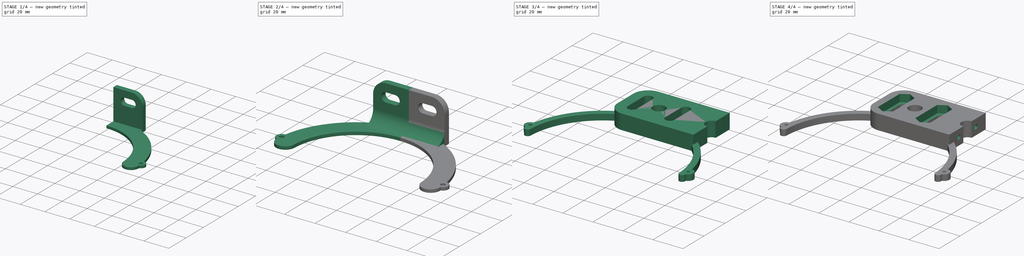
[diagram: build sequence overview — one tinted view per stage of 4, left to right]
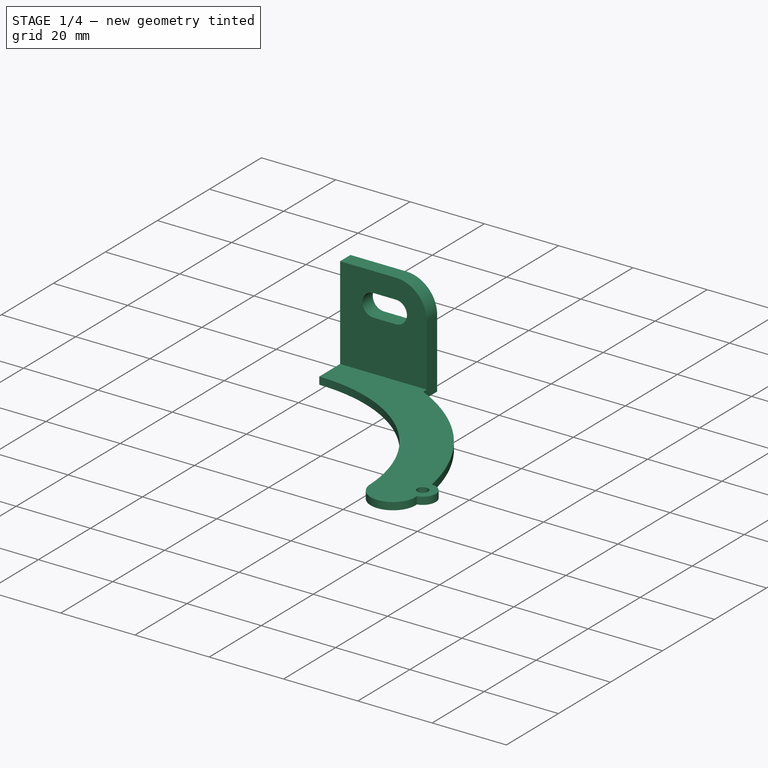
[diagram: stage 1 of 4 — iso view after this stage's code; geometry added in this stage tinted green]
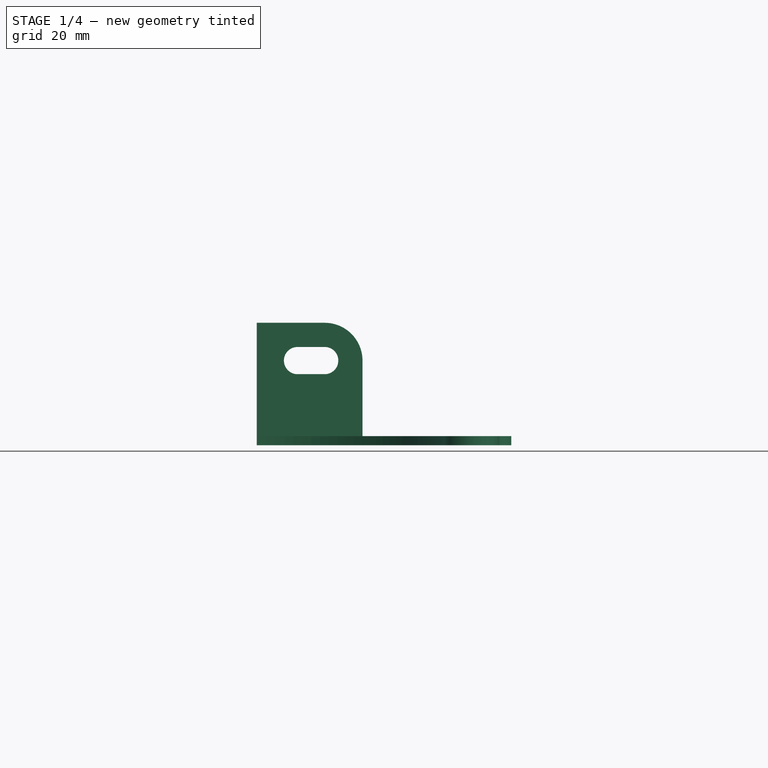
[diagram: stage 1 of 4 — front view after this stage's code; geometry added in this stage tinted green]
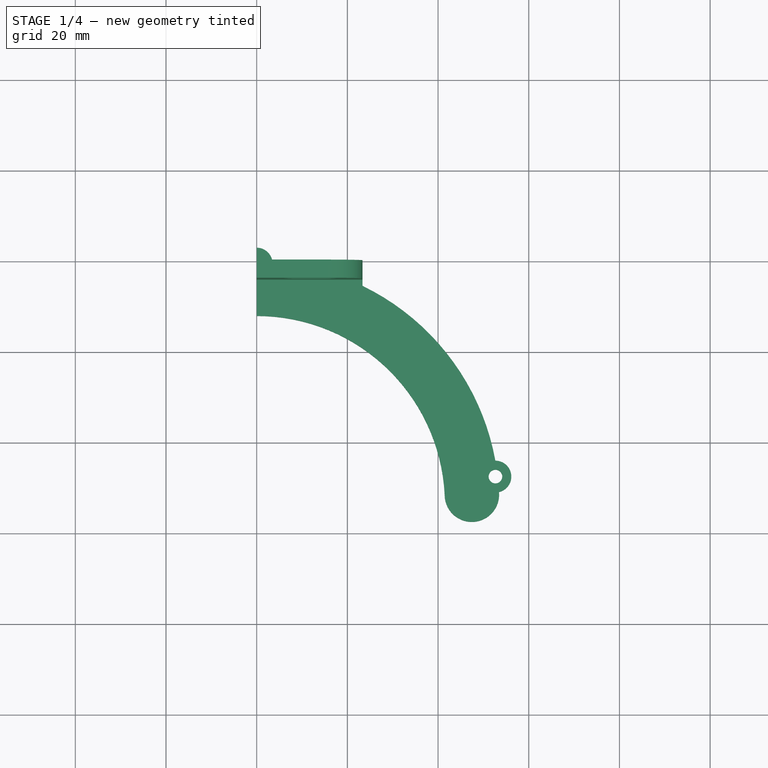
[diagram: stage 1 of 4 — top view after this stage's code; geometry added in this stage tinted green]
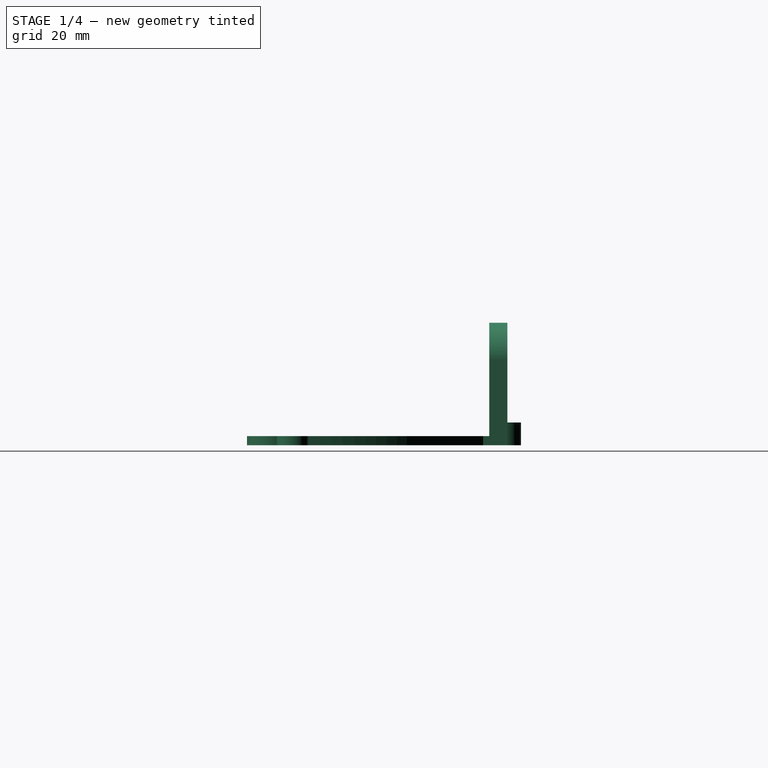
[diagram: stage 1 of 4 — right view after this stage's code; geometry added in this stage tinted green]
FCSTD DOCUMENT  (FreeCAD 0.19R24291 (Git))
Label: ограничитель подложки
License: All rights reserved
LicenseURL: http://en.wikipedia.org/wiki/All_rights_reserved
objects: Sketcher::SketchObject×9, PartDesign::Pad×5, PartDesign::Pocket×4, PartDesign::Body×3, PartDesign::Mirrored×2, PartDesign::SubShapeBinder×1, PartDesign::Fillet×1
note: 35 computed .brp shape members not serialized (recipe doc carries the construction recipe); baked Part::Feature solids carry a one-line shape summary decoded from their .brp

FEATURE [PartDesign::Body] Body
  Group = -> [Sketch,Pad,Sketch001,Pocket,Sketch002,Pocket001,Sketch003,Pocket002]
  Origin = -> Origin
  Placement = pos=(0,0,15) rot=(1,0,0;-1.5708rad)
  Tip = -> Pocket002
FEATURE [Sketcher::SketchObject] Sketch004
  FullyConstrained = false
  MapMode = 5
  Placement = pos=(0,0,0) rot=(1,0,0;1.5708rad)
  Support = -> [XZ_Plane001]
  sketch-geometry (15):
    g0: ArcOfCircle CenterX=9 CenterY=16.6667 CenterZ=0 NormalX=0 NormalY=0 NormalZ=1 AngleXU=0 Radius=3 StartAngle=1.5708 EndAngle=4.71239
    g1: ArcOfCircle CenterX=15 CenterY=16.6667 CenterZ=0 NormalX=0 NormalY=0 NormalZ=1 AngleXU=0 Radius=3 StartAngle=4.71239 EndAngle=7.85398
    g2: LineSegment StartX=9 StartY=13.6667 StartZ=0 EndX=15 EndY=13.6667 EndZ=0
    g3: LineSegment StartX=9 StartY=19.6667 StartZ=0 EndX=15 EndY=19.6667 EndZ=0
    g4: LineSegment StartX=6 StartY=16.6667 StartZ=0 EndX=18 EndY=16.6667 EndZ=0
    g5: LineSegment StartX=0 StartY=0 StartZ=0 EndX=23.3333 EndY=0 EndZ=0
    g6: LineSegment StartX=23.3333 StartY=0 StartZ=0 EndX=23.3333 EndY=16.6667 EndZ=0
    g7: LineSegment StartX=15 StartY=25 StartZ=0 EndX=0 EndY=25 EndZ=0
    g8: LineSegment StartX=0 StartY=25 StartZ=0 EndX=0 EndY=0 EndZ=0
    g9: ArcOfCircle CenterX=15 CenterY=16.6667 CenterZ=0 NormalX=0 NormalY=0 NormalZ=1 AngleXU=0 Radius=8.33333 StartAngle=0 EndAngle=1.5708
    g10: LineSegment StartX=9 StartY=16.6667 StartZ=0 EndX=9 EndY=25 EndZ=0
    g11: LineSegment StartX=9 StartY=16.6667 StartZ=0 EndX=9 EndY=8.33333 EndZ=0
    g12: LineSegment StartX=9 StartY=8.33333 StartZ=0 EndX=9 EndY=0 EndZ=0
    g13: LineSegment StartX=9 StartY=16.6667 StartZ=0 EndX=12 EndY=30.4187 EndZ=0
    g14: LineSegment StartX=12 StartY=30.4187 StartZ=0 EndX=15 EndY=16.6667 EndZ=0
  constraints (39):
    c: Tangent(g0,g3) = 1.5708
    c: Tangent(g0,g2) = -1.5708
    c: Tangent(g2,g1) = -1.5708
    c: Tangent(g3,g1) = 1.5708
    c: Horizontal(g2)
    c: Equal(g0,g1)
    c: Diameter(g1) = 6
    c: PointOnObject(g4,g0)
    c: PointOnObject(g4,g1)
    c: Horizontal(g4)
    c: PointOnObject(g0,g4)
    c: Distance(g4) = 12
    c: Coincident(g5,g6)
    c: Coincident(g7,g8)
    c: Coincident(g8,g5)
    c: Horizontal(g5)
    c: Horizontal(g7)
    c: Vertical(g6)
    c: Vertical(g8)
    c: Coincident(g5,g-1)
    c: Tangent(g7,g9) = -1.5708
    c: Tangent(g6,g9) = -1.5708
    c: Coincident(g9,g1)
    c: Coincident(g10,g0)
    c: PointOnObject(g10,g7)
    c: Vertical(g10)
    c: Coincident(g11,g0)
    c: Vertical(g11)
    c: Coincident(g12,g11)
    c: PointOnObject(g12,g-1)
    c: Vertical(g12)
    c: Equal(g12,g11)
    c: Equal(g11,g10)
    c: Coincident(g13,g0)
    c: Coincident(g14,g13)
    c: Coincident(g14,g1)
    c: Equal(g14,g13)
    c: Distance(g13,g8) = 12
    c: Distance(g8) = 25
FEATURE [PartDesign::Pad] Pad001
  Direction = (1,1,1)
  Length = 4
  Length2 = 100
  Placement = pos=(0,0,0) rot=(1,0,0;1.5708rad)
  Profile = -> Sketch004
  Type = 0
FEATURE [Sketcher::SketchObject] Sketch005
  ExternalGeometry = -> [Pad001]
  FullyConstrained = true
  MapMode = 5
  Support = -> [XY_Plane001]
  sketch-geometry (16):
    g0: ArcOfCircle CenterX=0 CenterY=-53.5 CenterZ=0 NormalX=0 NormalY=0 NormalZ=1 AngleXU=0 Radius=49.5 StartAngle=0.0388447 EndAngle=1.5708
    g1: ArcOfCircle CenterX=0 CenterY=-53.5 CenterZ=0 NormalX=0 NormalY=0 NormalZ=1 AngleXU=0 Radius=53.5 StartAngle=0.0388445 EndAngle=0.0498598
    g2: LineSegment StartX=23.3333 StartY=-5.35641 StartZ=0 EndX=23.3333 EndY=0 EndZ=0
    g3: LineSegment StartX=23.3333 StartY=0 StartZ=0 EndX=0 EndY=0 EndZ=0
    g4: ArcOfCircle CenterX=51.4612 CenterY=-51.5 CenterZ=0 NormalX=0 NormalY=0 NormalZ=1 AngleXU=0 Radius=2 StartAngle=3.18044 EndAngle=6.32202
    g5: LineSegment StartX=0 StartY=-53.5 StartZ=0 EndX=51.4612 EndY=-53.5 EndZ=0
    g6: ArcOfCircle CenterX=0 CenterY=-53.5 CenterZ=0 NormalX=0 NormalY=0 NormalZ=1 AngleXU=0 Radius=41.5 StartAngle=0.0500849 EndAngle=1.5708
    g7: LineSegment StartX=41.448 StartY=-51.4223 StartZ=0 EndX=53.4329 EndY=-50.8216 EndZ=0
    g8: LineSegment StartX=2.5e-15 StartY=-12 StartZ=0 EndX=0 EndY=0 EndZ=0
    g9: LineSegment StartX=41.448 StartY=-51.4223 StartZ=0 EndX=53.4596 EndY=-51.4223 EndZ=0
    g10: Circle CenterX=52.6504 CenterY=-47.4223 CenterZ=0 NormalX=0 NormalY=0 NormalZ=1 AngleXU=0 Radius=1.5
    g11: LineSegment StartX=52.6504 StartY=-47.4223 StartZ=0 EndX=49.1735 EndY=-47.8237 EndZ=0
    g12: LineSegment StartX=52.6504 StartY=-47.4223 StartZ=0 EndX=56.1273 EndY=-47.021 EndZ=0
    g13: ArcOfCircle CenterX=47.4538 CenterY=-51.4223 CenterZ=0 NormalX=0 NormalY=0 NormalZ=1 AngleXU=0 Radius=6.00584 StartAngle=3.14159 EndAngle=6.28319
    g14: ArcOfCircle CenterX=52.6504 CenterY=-47.4223 CenterZ=0 NormalX=0 NormalY=0 NormalZ=1 AngleXU=0 Radius=3.5 StartAngle=4.93805 EndAngle=7.85817
    g15: ArcOfCircle CenterX=0 CenterY=-53.5 CenterZ=0 NormalX=0 NormalY=0 NormalZ=1 AngleXU=0 Radius=53.5 StartAngle=0.179991 EndAngle=1.11949
  constraints (50):
    c: PointOnObject(g0,g-2)
    c: PointOnObject(g0,g-2)
    c: Coincident(g1,g0)
    c: Coincident(g2,g15)
    c: Vertical(g2)
    c: Coincident(g3,g2)
    c: Coincident(g3,g-1)
    c: Coincident(g4,g0)
    c: Coincident(g4,g1)
    c: Tangent(g1,g4)
    c: Tangent(g4,g0)
    c: Diameter(g4) = 4
    c: Diameter(g0) = 99
    c: Coincident(g5,g0)
    c: PointOnObject(g5,g4)
    c: Tangent(g5,g4)
    c: Horizontal(g5)
    c: Coincident(g-3,g2)
    c: Distance(g3) = 23.3333
    c: Distance(g0,g3) = 4
    c: Coincident(g6,g1)
    c: Coincident(g7,g6)
    c: PointOnObject(g7,g1)
    c: Perpendicular(g1,g7)
    c: Distance(g7) = 12
    c: PointOnObject(g6,g-2)
    c: Coincident(g8,g6)
    c: Coincident(g8,g3)
    c: Coincident(g9,g6)
    c: Coincident(g9,g1)
    c: Horizontal(g9)
    c: Diameter(g10) = 3
    c: Coincident(g11,g10)
    c: PointOnObject(g11,g0)
    c: Coincident(g12,g10)
    c: Perpendicular(g1,g12)
    c: Perpendicular(g0,g11)
    c: Equal(g12,g11)
    c: Distance(g10,g9) = 4
    c: PointOnObject(g13,g9)
    c: Coincident(g13,g6)
    c: Coincident(g13,g1)
    c: Coincident(g14,g10)
    c: PointOnObject(g14,g1)
    c: Diameter(g14) = 7
    c: Equal(g1,g15)
    c: Coincident(g1,g14)
    c: Coincident(g1,g15)
    c: PointOnObject(g15,g14)
    c: PointOnObject(g12,g14)
FEATURE [PartDesign::Pad] Pad002
  BaseFeature = -> Pad001
  Direction = (1,1,1)
  Length = 2
  Length2 = 100
  Placement = pos=(0,0,0) rot=(1,0,0;1.5708rad)
  Profile = -> Sketch005
  Reversed = true
  Type = 0
FEATURE [PartDesign::Body] Body002
  Group = -> [Sketch006,Binder,Pad003,Mirrored]
  Origin = -> Origin002
  Placement = pos=(0,0,-6) rot=(0,0,1;0rad)
  Tip = -> Mirrored
FEATURE [Sketcher::SketchObject] Sketch007
  ExternalGeometry = -> [Pad001]
  FullyConstrained = false
  MapMode = 5
  Support = -> [XY_Plane001]
  expr: Constraints[11] = Sketch005.Constraints[11]
  expr: Constraints[12] = Sketch005.Constraints[12]
  expr: Constraints[19] = Sketch005.Constraints[19]
  expr: Constraints[24] = Sketch005.Constraints[24]
  expr: Constraints[31] = Sketch005.Constraints[31]
  expr: Constraints[38] = Sketch005.Constraints[38]
  expr: Constraints[44] = Sketch005.Constraints[44]
  sketch-geometry (22):
    g0: ArcOfCircle CenterX=0 CenterY=-53.5 CenterZ=0 NormalX=0 NormalY=0 NormalZ=1 AngleXU=0 Radius=49.5 StartAngle=0.038845 EndAngle=1.5708
    g1: ArcOfCircle CenterX=0 CenterY=-53.5 CenterZ=0 NormalX=0 NormalY=0 NormalZ=1 AngleXU=0 Radius=53.5 StartAngle=0.0388445 EndAngle=0.0498599
    g2: LineSegment StartX=23.3333 StartY=-5.35641 StartZ=0 EndX=23.3333 EndY=0 EndZ=0
    g3: LineSegment StartX=23.3333 StartY=0 StartZ=0 EndX=0 EndY=0 EndZ=0
    g4: ArcOfCircle CenterX=51.4612 CenterY=-51.5 CenterZ=0 NormalX=0 NormalY=0 NormalZ=1 AngleXU=0 Radius=2 StartAngle=3.18043 EndAngle=6.32202
    g5: LineSegment StartX=0 StartY=-53.5 StartZ=0 EndX=51.4612 EndY=-53.5 EndZ=0
    g6: ArcOfCircle CenterX=0 CenterY=-53.5 CenterZ=0 NormalX=0 NormalY=0 NormalZ=1 AngleXU=0 Radius=41.5 StartAngle=0.050085 EndAngle=1.5708
    g7: LineSegment StartX=41.448 StartY=-51.4223 StartZ=0 EndX=53.4329 EndY=-50.8216 EndZ=0
    g8: LineSegment StartX=0 StartY=-12 StartZ=0 EndX=0 EndY=0 EndZ=0
    g9: LineSegment StartX=41.448 StartY=-51.4223 StartZ=0 EndX=53.4596 EndY=-51.4223 EndZ=0
    g10: Circle CenterX=52.6504 CenterY=-47.4223 CenterZ=0 NormalX=0 NormalY=0 NormalZ=1 AngleXU=0 Radius=1.5
    g11: LineSegment StartX=52.6504 StartY=-47.4223 StartZ=0 EndX=49.1735 EndY=-47.8237 EndZ=0
    g12: LineSegment StartX=52.6504 StartY=-47.4223 StartZ=0 EndX=56.1273 EndY=-47.021 EndZ=0
    g13: ArcOfCircle CenterX=47.4538 CenterY=-51.4223 CenterZ=0 NormalX=0 NormalY=0 NormalZ=1 AngleXU=0 Radius=6.00584 StartAngle=3.14159 EndAngle=6.28319
    g14: ArcOfCircle CenterX=52.6504 CenterY=-47.4223 CenterZ=0 NormalX=0 NormalY=0 NormalZ=1 AngleXU=0 Radius=3.5 StartAngle=4.93805 EndAngle=7.85817
    g15: ArcOfCircle CenterX=0 CenterY=-53.5 CenterZ=0 NormalX=0 NormalY=0 NormalZ=1 AngleXU=0 Radius=53.5 StartAngle=0.179991 EndAngle=1.11949
    g16: Circle CenterX=0 CenterY=-0.5 CenterZ=0 NormalX=0 NormalY=0 NormalZ=1 AngleXU=0 Radius=1.13809
    g17: ArcOfCircle CenterX=0 CenterY=-0.5 CenterZ=0 NormalX=0 NormalY=0 NormalZ=1 AngleXU=0 Radius=3.5 StartAngle=0.143348 EndAngle=1.5708
    g18: LineSegment StartX=0 StartY=-4 StartZ=0 EndX=0 EndY=-0.5 EndZ=0
    g19: LineSegment StartX=0 StartY=-0.5 StartZ=0 EndX=2e-16 EndY=3 EndZ=0
    g20: LineSegment StartX=0 StartY=0 StartZ=0 EndX=3.4641 EndY=0 EndZ=0
    g21: LineSegment StartX=0 StartY=0 StartZ=0 EndX=2e-16 EndY=3 EndZ=0
  constraints (64):
    c: PointOnObject(g0,g-2)
    c: PointOnObject(g0,g-2)
    c: Coincident(g1,g0)
    c: Coincident(g2,g15)
    c: Vertical(g2)
    c: Coincident(g3,g2)
    c: Coincident(g3,g-1)
    c: Coincident(g4,g0)
    c: Coincident(g4,g1)
    c: Tangent(g1,g4)
    c: Tangent(g4,g0)
    c: Diameter(g4) = 4
    c: Diameter(g0) = 99
    c: Coincident(g5,g0)
    c: PointOnObject(g5,g4)
    c: Tangent(g5,g4)
    c: Horizontal(g5)
    c: Coincident(g-3,g2)
    c: Distance(g3) = 23.3333
    c: Distance(g0,g3) = 4
    c: Coincident(g6,g1)
    c: Coincident(g7,g6)
    c: PointOnObject(g7,g1)
    c: Perpendicular(g1,g7)
    c: Distance(g7) = 12
    c: PointOnObject(g6,g-2)
    c: Coincident(g8,g6)
    c: Coincident(g8,g3)
    c: Coincident(g9,g6)
    c: Coincident(g9,g1)
    c: Horizontal(g9)
    c: Diameter(g10) = 3
    c: Coincident(g11,g10)
    c: PointOnObject(g11,g0)
    c: Coincident(g12,g10)
    c: Perpendicular(g1,g12)
    c: Perpendicular(g0,g11)
    c: Equal(g12,g11)
    c: Distance(g10,g9) = 4
    c: PointOnObject(g13,g9)
    c: Coincident(g13,g6)
    c: Coincident(g13,g1)
    c: Coincident(g14,g10)
    c: PointOnObject(g14,g1)
    c: Diameter(g14) = 7
    c: Equal(g1,g15)
    c: Coincident(g1,g14)
    c: Coincident(g1,g15)
    c: PointOnObject(g15,g14)
    c: PointOnObject(g12,g14)
    c: PointOnObject(g16,g-2)
    c: Coincident(g17,g16)
    c: PointOnObject(g17,g-2)
    c: Diameter(g17) = 7
    c: Coincident(g18,g0)
    c: Coincident(g18,g17)
    c: Coincident(g19,g17)
    c: Coincident(g19,g17)
    c: Equal(g18,g19)
    c: Coincident(g20,g-1)
    c: Coincident(g20,g17)
    c: Coincident(g21,g20)
    c: Coincident(g21,g17)
    c: Horizontal(g20)
FEATURE [PartDesign::Pad] Pad004
  BaseFeature = -> Pad002
  Direction = (1,1,1)
  Length = 3
  Length2 = 2
  Placement = pos=(0,0,0) rot=(1,0,0;1.5708rad)
  Profile = -> Sketch007
  Type = 4
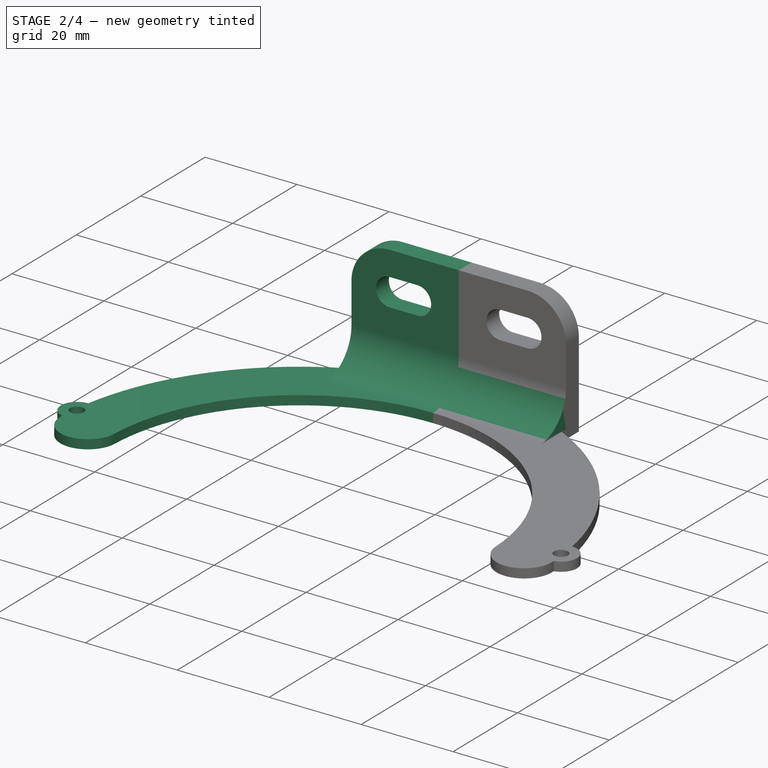
[diagram: stage 2 of 4 — iso view after this stage's code; geometry added in this stage tinted green]
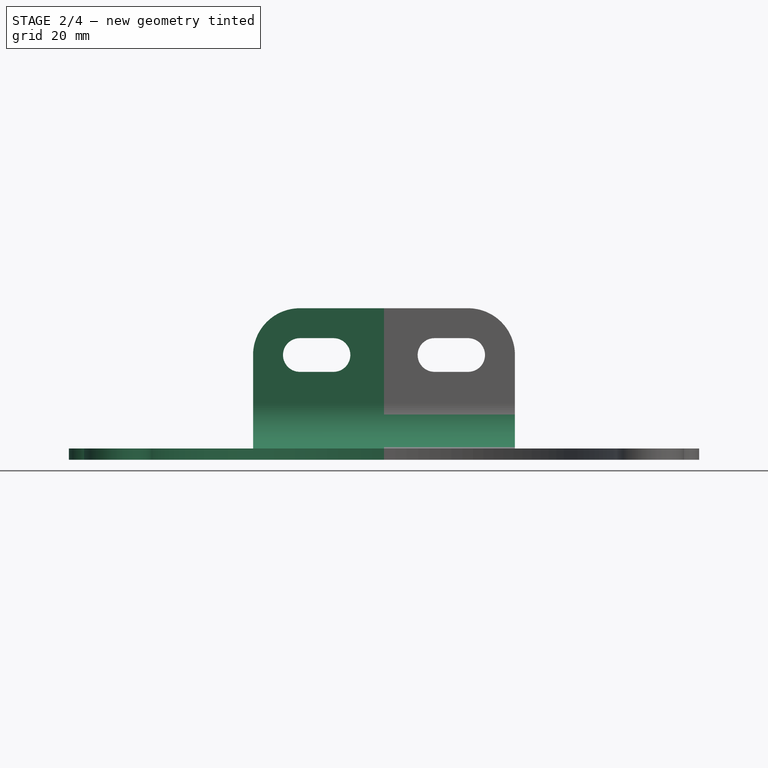
[diagram: stage 2 of 4 — front view after this stage's code; geometry added in this stage tinted green]
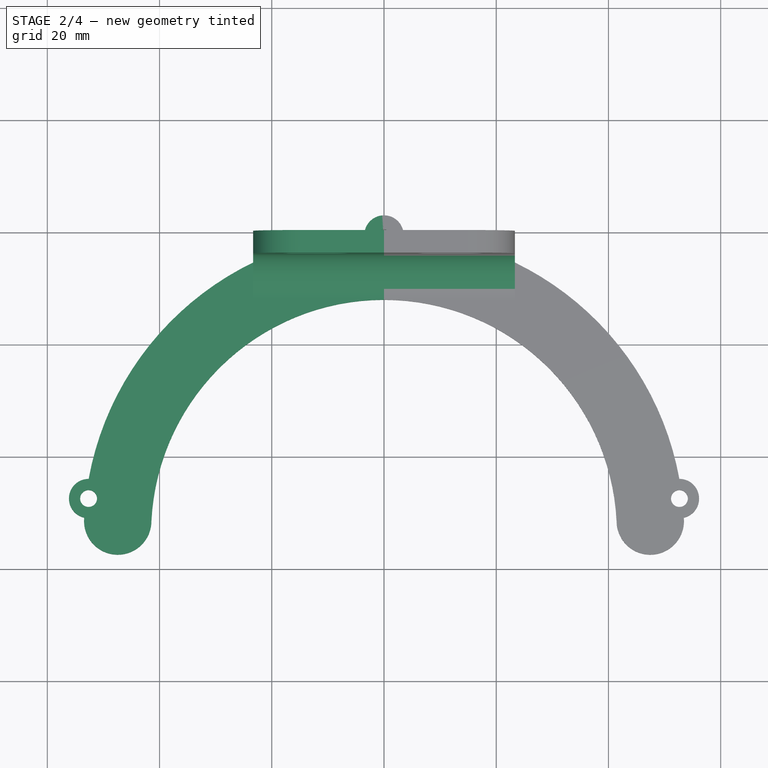
[diagram: stage 2 of 4 — top view after this stage's code; geometry added in this stage tinted green]
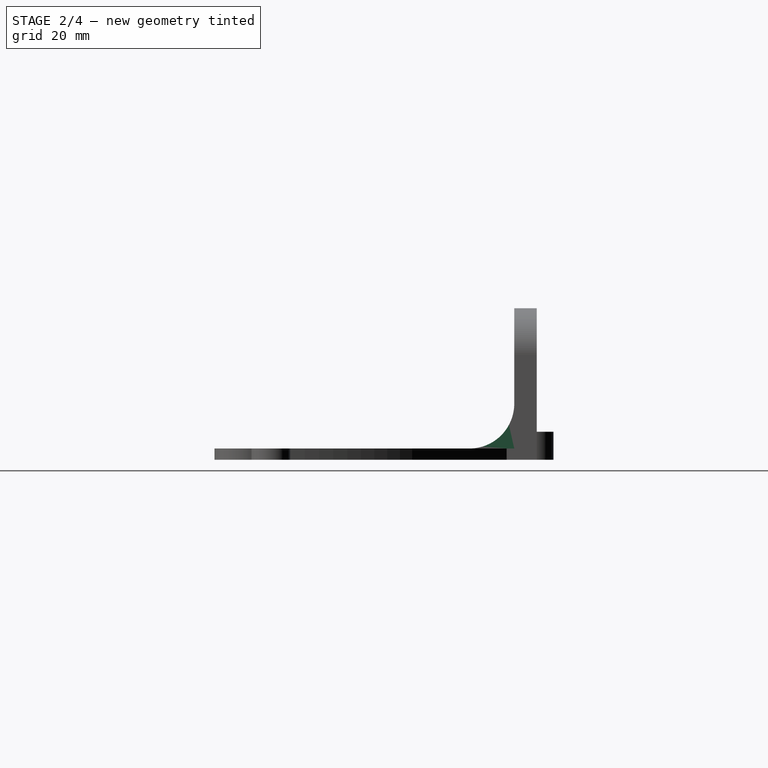
[diagram: stage 2 of 4 — right view after this stage's code; geometry added in this stage tinted green]
FEATURE [Sketcher::SketchObject] Sketch008
  ExternalGeometry = -> [Pad004]
  FullyConstrained = true
  MapMode = 5
  Placement = pos=(0,-1.3e-15,-2) rot=(1,0,0;3.14159rad)
  Support = -> [Pad004]
  sketch-geometry (1):
    g0: Circle CenterX=0 CenterY=0.5 CenterZ=0 NormalX=0 NormalY=0 NormalZ=1 AngleXU=0 Radius=1
  constraints (2):
    c: Coincident(g0,g-3)
    c: Diameter(g0) = 2
FEATURE [PartDesign::Pocket] Pocket003
  BaseFeature = -> Pad004
  Length = 5
  Length2 = 100
  Placement = pos=(0,0,0) rot=(1,0,0;1.5708rad)
  Profile = -> Sketch008
  Type = 0
FEATURE [PartDesign::Mirrored] Mirrored001
  BaseFeature = -> Pocket003
  MirrorPlane = -> Sketch004 [V_Axis]
  Originals = -> [Pad001,Pad002,Pad004,Pocket003]
  Placement = pos=(0,0,0) rot=(1,0,0;1.5708rad)
FEATURE [PartDesign::Fillet] Fillet
  Base = -> Mirrored001 [Edge22]
  BaseFeature = -> Mirrored001
  Placement = pos=(0,0,0) rot=(1,0,0;1.5708rad)
  Radius = 8
  SupportTransform = false
FEATURE [PartDesign::Body] Body001
  Group = -> [Sketch004,Pad001,Sketch005,Pad002,Sketch007,Pad004,Sketch008,Pocket003,Mirrored001,Fillet]
  Origin = -> Origin001
  Tip = -> Fillet
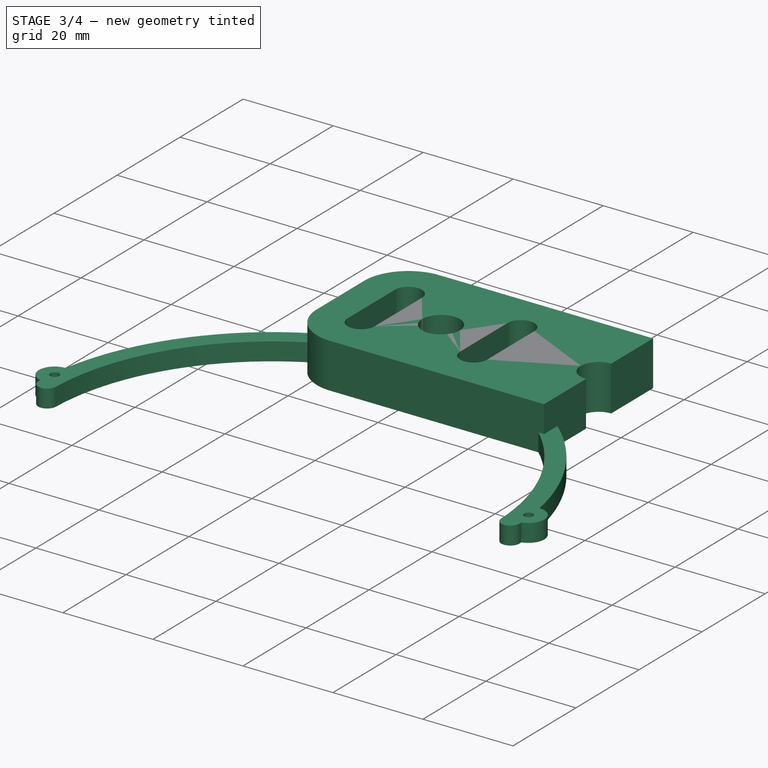
[diagram: stage 3 of 4 — iso view after this stage's code; geometry added in this stage tinted green]
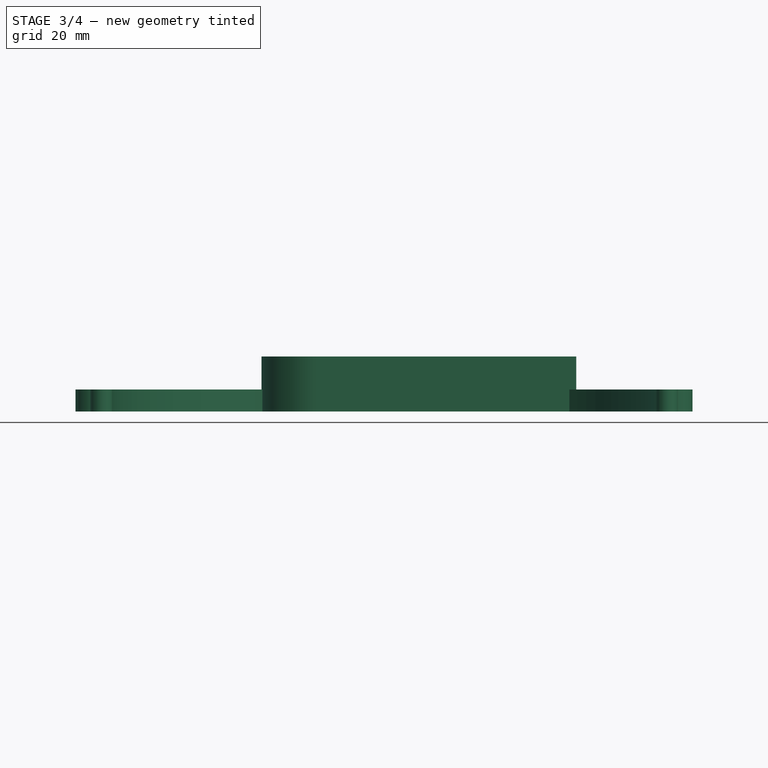
[diagram: stage 3 of 4 — front view after this stage's code; geometry added in this stage tinted green]
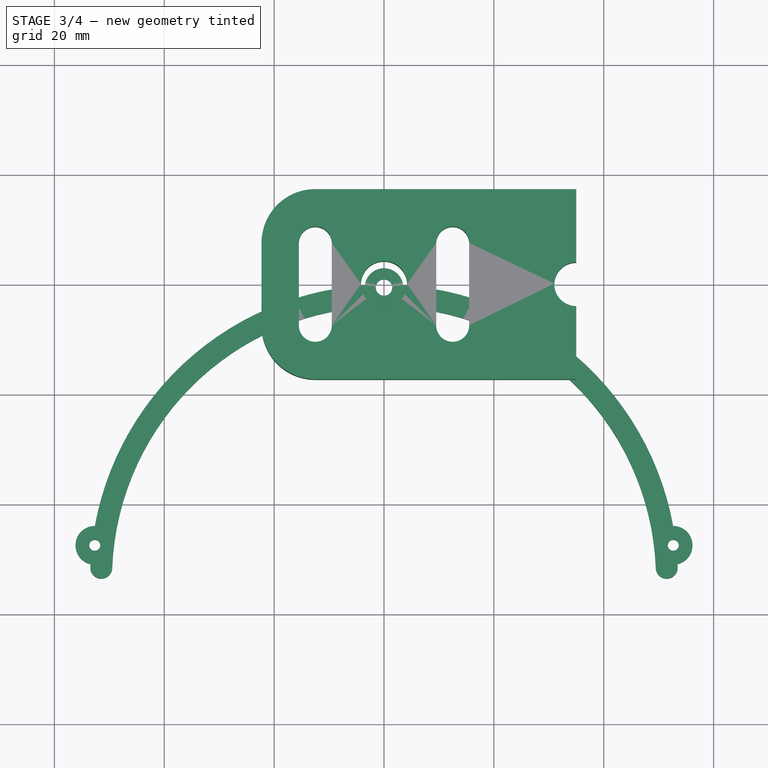
[diagram: stage 3 of 4 — top view after this stage's code; geometry added in this stage tinted green]
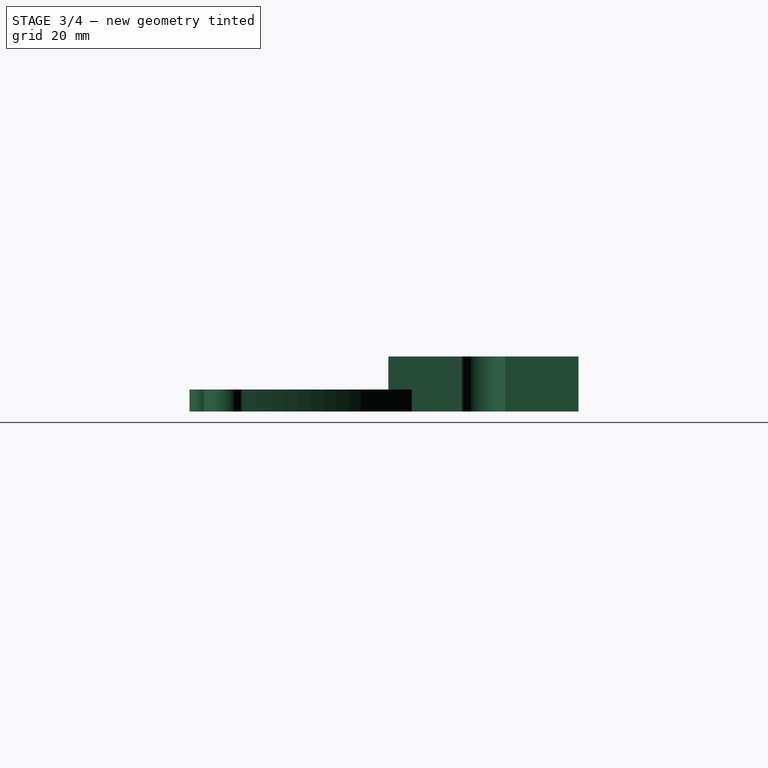
[diagram: stage 3 of 4 — right view after this stage's code; geometry added in this stage tinted green]
FEATURE [Sketcher::SketchObject] Sketch
  FullyConstrained = true
  MapMode = 5
  Support = -> [XY_Plane]
  sketch-geometry (26):
    g0: Circle CenterX=0 CenterY=0 CenterZ=0 NormalX=0 NormalY=0 NormalZ=1 AngleXU=0 Radius=4.2
    g1: ArcOfCircle CenterX=-12.5 CenterY=-7.5 CenterZ=0 NormalX=0 NormalY=0 NormalZ=1 AngleXU=0 Radius=3 StartAngle=3.14159 EndAngle=6.28319
    g2: ArcOfCircle CenterX=-12.5 CenterY=7.5 CenterZ=0 NormalX=0 NormalY=0 NormalZ=1 AngleXU=0 Radius=3 StartAngle=0 EndAngle=3.14159
    g3: LineSegment StartX=-9.5 StartY=-7.5 StartZ=0 EndX=-9.5 EndY=7.5 EndZ=0
    g4: LineSegment StartX=-15.5 StartY=-7.5 StartZ=0 EndX=-15.5 EndY=7.5 EndZ=0
    g5: ArcOfCircle CenterX=12.5 CenterY=-7.5 CenterZ=0 NormalX=0 NormalY=0 NormalZ=1 AngleXU=0 Radius=3 StartAngle=3.14159 EndAngle=6.28319
    g6: ArcOfCircle CenterX=12.5 CenterY=7.5 CenterZ=0 NormalX=0 NormalY=0 NormalZ=1 AngleXU=0 Radius=3 StartAngle=1e-16 EndAngle=3.14159
    g7: LineSegment StartX=15.5 StartY=-7.5 StartZ=0 EndX=15.5 EndY=7.5 EndZ=0
    g8: LineSegment StartX=9.5 StartY=-7.5 StartZ=0 EndX=9.5 EndY=7.5 EndZ=0
    g9: ArcOfCircle CenterX=-12.5 CenterY=-7.5 CenterZ=0 NormalX=0 NormalY=0 NormalZ=1 AngleXU=0 Radius=9.8 StartAngle=3.1416 EndAngle=4.71239
    g10: ArcOfCircle CenterX=-12.5 CenterY=7.5 CenterZ=0 NormalX=0 NormalY=0 NormalZ=1 AngleXU=0 Radius=9.8 StartAngle=1.5708 EndAngle=3.14159
    g11: LineSegment StartX=-12.5 StartY=-17.3 StartZ=0 EndX=35 EndY=-17.3 EndZ=0
    g12: LineSegment StartX=-12.5 StartY=17.3 StartZ=0 EndX=35 EndY=17.3 EndZ=0
    g13: LineSegment StartX=-22.3 StartY=-7.50003 StartZ=0 EndX=-22.3 EndY=7.50002 EndZ=0
    g14: ArcOfCircle CenterX=35 CenterY=0 CenterZ=0 NormalX=0 NormalY=0 NormalZ=1 AngleXU=0 Radius=4 StartAngle=1.5708 EndAngle=4.71239
    g15: LineSegment StartX=35 StartY=4 StartZ=0 EndX=35 EndY=17.3 EndZ=0
    g16: LineSegment StartX=35 StartY=-4 StartZ=0 EndX=35 EndY=-17.3 EndZ=0
    g17: LineSegment StartX=0 StartY=0 StartZ=0 EndX=-12.5 EndY=7.5 EndZ=0
    g18: LineSegment StartX=0 StartY=0 StartZ=0 EndX=12.5 EndY=7.5 EndZ=0
    g19: LineSegment StartX=-12.5 StartY=13.2735 StartZ=0 EndX=-17.5 EndY=10.3868 EndZ=0
    g20: LineSegment StartX=-17.5 StartY=10.3868 StartZ=0 EndX=-17.5 EndY=4.61325 EndZ=0
    g21: LineSegment StartX=-17.5 StartY=4.61325 StartZ=0 EndX=-12.5 EndY=1.7265 EndZ=0
    g22: LineSegment StartX=-12.5 StartY=1.7265 StartZ=0 EndX=-7.5 EndY=4.61325 EndZ=0
    g23: LineSegment StartX=-7.5 StartY=4.61325 StartZ=0 EndX=-7.5 EndY=10.3868 EndZ=0
    g24: LineSegment StartX=-7.5 StartY=10.3868 StartZ=0 EndX=-12.5 EndY=13.2735 EndZ=0
    g25: Circle CenterX=-12.5 CenterY=7.5 CenterZ=0 NormalX=0 NormalY=0 NormalZ=1 AngleXU=0 Radius=5.7735
  constraints (68):
    c: Coincident(g0,g-1)
    c: Diameter(g0) = 8.4
    c: Tangent(g1,g4) = 1.5708
    c: Tangent(g1,g3) = -1.5708
    c: Tangent(g3,g2) = -1.5708
    c: Tangent(g4,g2) = 1.5708
    c: Vertical(g3)
    c: Equal(g1,g2)
    c: Tangent(g5,g8) = 1.5708
    c: Tangent(g5,g7) = -1.5708
    c: Tangent(g7,g6) = -1.5708
    c: Tangent(g8,g6) = 1.5708
    c: Vertical(g7)
    c: Equal(g5,g6)
    c: Horizontal(g6,g2)
    c: Horizontal(g5,g1)
    c: Diameter(g6) = 6
    c: Equal(g6,g2)
    c: Distance(g5,g6) = 15
    c: Coincident(g9,g1)
    c: Coincident(g10,g2)
    c: Equal(g9,g10)
    c: Diameter(g9) = 19.6
    c: Coincident(g11,g9)
    c: Horizontal(g11)
    c: Coincident(g12,g10)
    c: Horizontal(g12)
    c: Coincident(g13,g9)
    c: Coincident(g13,g10)
    c: Vertical(g13)
    c: Tangent(g12,g10)
    c: Tangent(g10,g13)
    c: Tangent(g9,g11)
    c: PointOnObject(g14,g-1)
    c: Coincident(g15,g14)
    c: Vertical(g15)
    c: Coincident(g16,g14)
    c: Vertical(g16)
    c: Coincident(g11,g16)
    c: Coincident(g12,g15)
    c: PointOnObject(g14,g15)
    c: PointOnObject(g14,g16)
    c: Equal(g16,g15)
    c: Diameter(g14) = 8
    c: Distance(g14,g0) = 35
    c: Coincident(g17,g0)
    c: Coincident(g17,g2)
    c: Coincident(g18,g0)
    c: Coincident(g18,g6)
    c: Equal(g18,g17)
    c: DistanceX(g0,g5) = 12.5
    c: Coincident(g19,g20)
    c: Coincident(g20,g21)
    c: Coincident(g21,g22)
    c: Coincident(g22,g23)
    c: Coincident(g23,g24)
    c: Coincident(g24,g19)
    c: Equal(g19, g20-g24) x5
    c: PointOnObject(g19,g25)
    c: PointOnObject(g20,g25)
    c: PointOnObject(g21,g25)
    c: PointOnObject(g22,g25)
    c: PointOnObject(g23,g25)
    c: PointOnObject(g24,g25)
    c: Coincident(g25,g2)
    c: Distance(g22,g20) = 10
    c: Vertical(g23)
    c: Diameter(g25) = 11.547
FEATURE [PartDesign::Pad] Pad
  Direction = (1,1,1)
  Length = 10
  Length2 = 100
  Profile = -> Sketch
  Type = 0
FEATURE [PartDesign::SubShapeBinder] Binder
  BindMode = 0
  ClaimChildren = false
  Context = -> Body002 [Binder.]
  Fuse = false
  MakeFace = true
  PartialLoad = false
  Relative = true
  Support = -> [Body001[Pad002.Face9]]
  _Version = 2
FEATURE [Sketcher::SketchObject] Sketch006
  ExternalGeometry = -> [Binder]
  FullyConstrained = true
  MapMode = 5
  Support = -> [XY_Plane002]
  sketch-geometry (10):
    g0: ArcOfCircle CenterX=0 CenterY=-53.5 CenterZ=0 NormalX=0 NormalY=0 NormalZ=1 AngleXU=0 Radius=53.5 StartAngle=0.0388445 EndAngle=0.0498598
    g1: ArcOfCircle CenterX=0 CenterY=-53.5 CenterZ=0 NormalX=0 NormalY=0 NormalZ=1 AngleXU=0 Radius=49.5 StartAngle=0.0388446 EndAngle=1.5708
    g2: LineSegment StartX=3e-15 StartY=-4 StartZ=0 EndX=-3e-16 EndY=-2 EndZ=0
    g3: ArcOfCircle CenterX=51.4612 CenterY=-51.5 CenterZ=0 NormalX=0 NormalY=0 NormalZ=1 AngleXU=0 Radius=2 StartAngle=3.18044 EndAngle=6.32203
    g4: Circle CenterX=52.6504 CenterY=-47.4223 CenterZ=0 NormalX=0 NormalY=0 NormalZ=1 AngleXU=0 Radius=1
    g5: ArcOfCircle CenterX=0 CenterY=-0.5 CenterZ=0 NormalX=0 NormalY=0 NormalZ=1 AngleXU=0 Radius=1.5 StartAngle=4.71239 EndAngle=7.85398
    g6: ArcOfCircle CenterX=0 CenterY=-0.5 CenterZ=0 NormalX=0 NormalY=0 NormalZ=1 AngleXU=0 Radius=3.5 StartAngle=0.110738 EndAngle=1.5708
    g7: LineSegment StartX=5e-16 StartY=1 StartZ=0 EndX=2e-16 EndY=3 EndZ=0
    g8: ArcOfCircle CenterX=52.6504 CenterY=-47.4223 CenterZ=0 NormalX=0 NormalY=0 NormalZ=1 AngleXU=0 Radius=3.5 StartAngle=4.93805 EndAngle=7.85817
    g9: ArcOfCircle CenterX=0 CenterY=-53.5 CenterZ=0 NormalX=0 NormalY=0 NormalZ=1 AngleXU=0 Radius=53.5 StartAngle=0.179991 EndAngle=1.50573
  constraints (30):
    c: Coincident(g0,g-3)
    c: Coincident(g0,g-3)
    c: Coincident(g1,g0)
    c: PointOnObject(g1,g-2)
    c: Coincident(g2,g1)
    c: Coincident(g3,g1)
    c: Coincident(g3,g0)
    c: Diameter(g4) = 2
    c: PointOnObject(g5,g2)
    c: Diameter(g5) = 3
    c: Coincident(g2,g5)
    c: Distance(g1,g-1) = 4
    c: Coincident(g6,g5)
    c: PointOnObject(g6,g-2)
    c: Tangent(g3,g1)
    c: Diameter(g6) = 7
    c: Coincident(g9,g6)
    c: Coincident(g7,g5)
    c: Coincident(g7,g6)
    c: Equal(g2,g7)
    c: PointOnObject(g2,g-2)
    c: PointOnObject(g5,g-2)
    c: Tangent(g3,g0)
    c: Coincident(g8,g4)
    c: Diameter(g8) = 7
    c: Equal(g0,g9)
    c: Coincident(g0,g8)
    c: Coincident(g9,g8)
    c: Coincident(g0,g9)
    c: Coincident(g8,g-5)
FEATURE [PartDesign::Pad] Pad003
  Direction = (1,1,1)
  Length = 4
  Length2 = 100
  Profile = -> Sketch006
  Type = 0
FEATURE [PartDesign::Mirrored] Mirrored
  BaseFeature = -> Pad003
  MirrorPlane = -> Sketch006 [V_Axis]
  Originals = -> [Pad003]
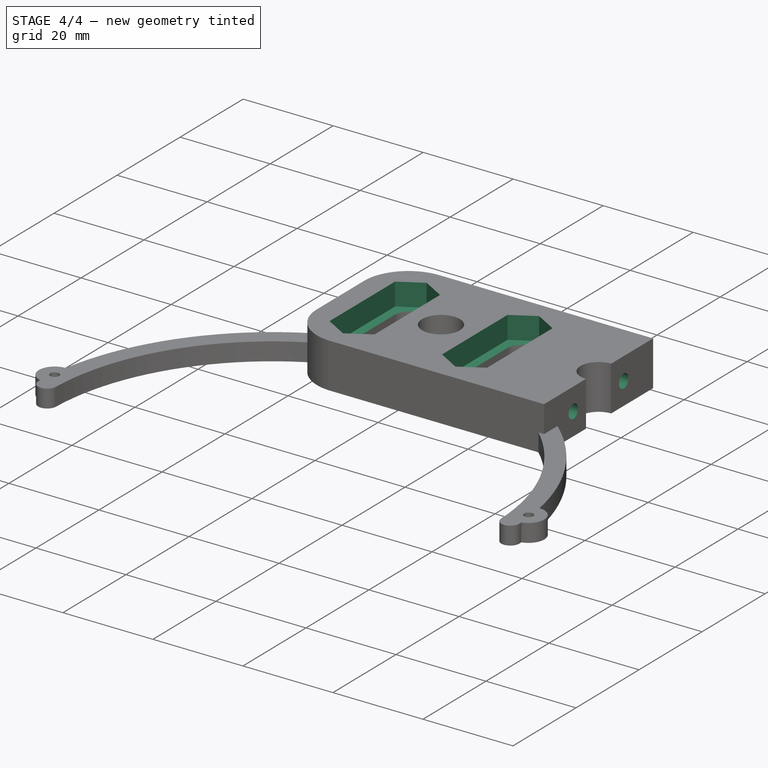
[diagram: stage 4 of 4 — iso view after this stage's code; geometry added in this stage tinted green]
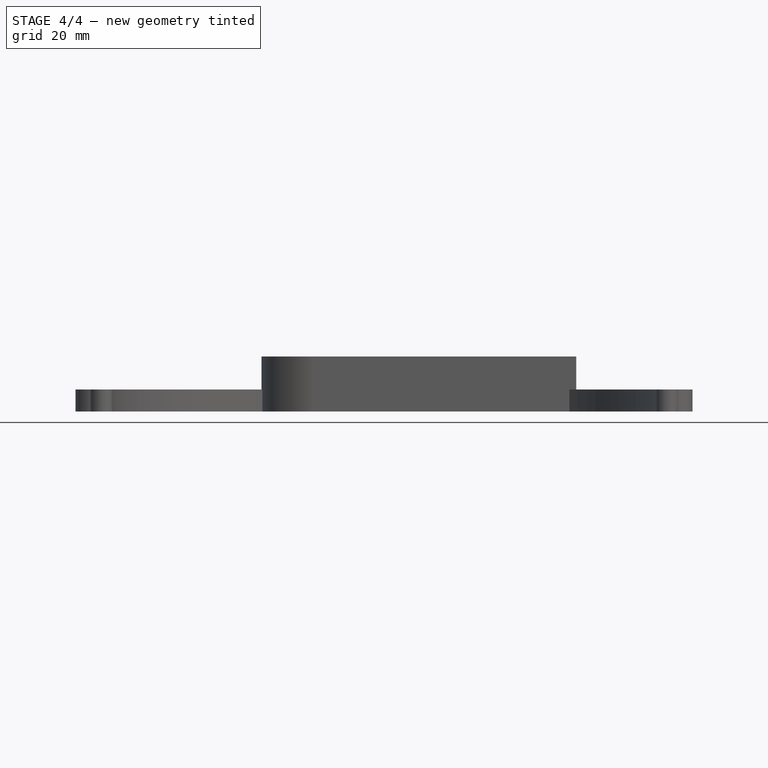
[diagram: stage 4 of 4 — front view after this stage's code; geometry added in this stage tinted green]
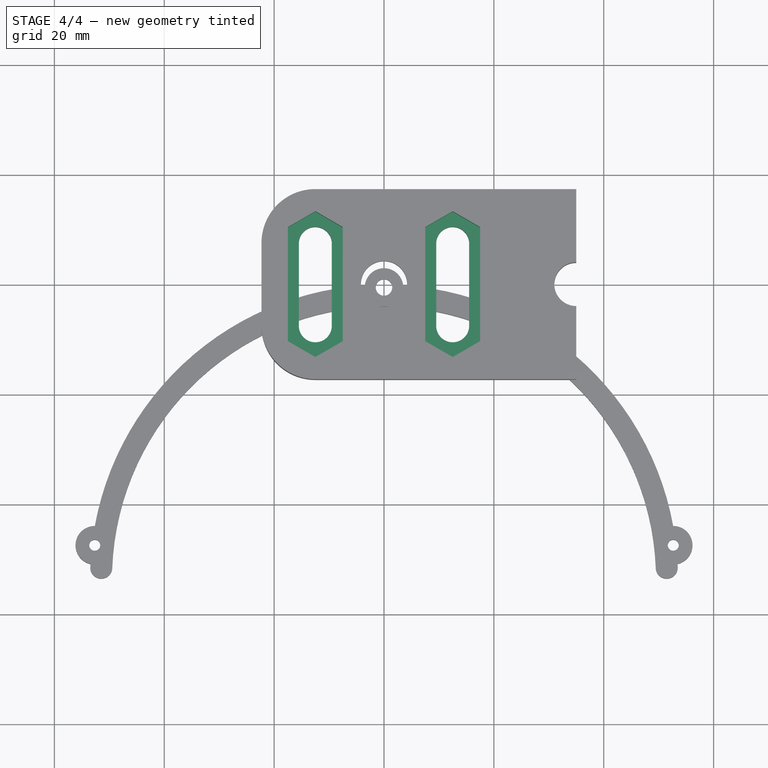
[diagram: stage 4 of 4 — top view after this stage's code; geometry added in this stage tinted green]
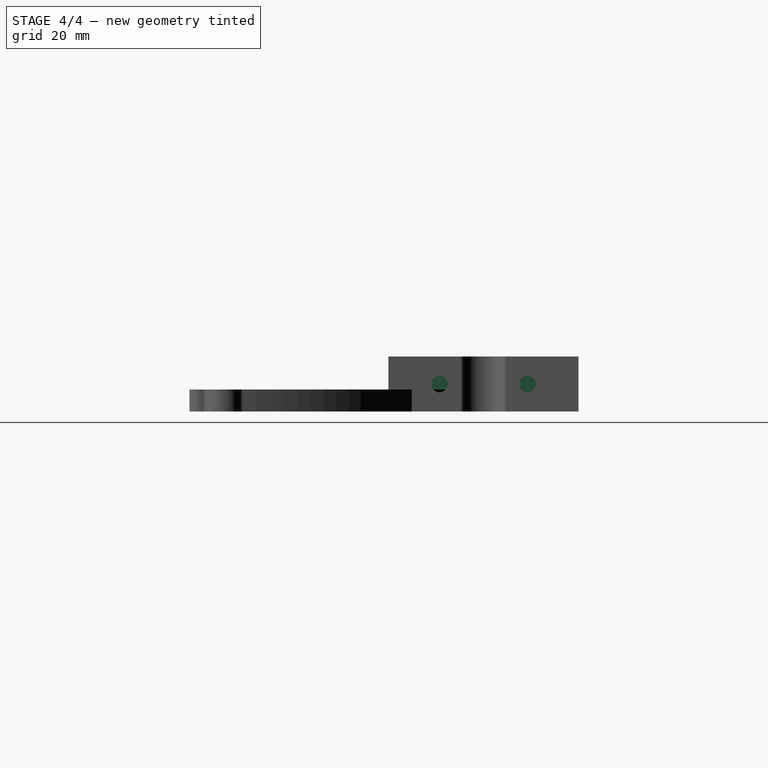
[diagram: stage 4 of 4 — right view after this stage's code; geometry added in this stage tinted green]
FEATURE [Sketcher::SketchObject] Sketch001
  FullyConstrained = true
  MapMode = 5
  Placement = pos=(0,0,10) rot=(0,0,1;0rad)
  Support = -> [Pad]
  expr: Constraints[69] = Sketch.Constraints[69]
  expr: Constraints[22] = Sketch.Constraints[22]
  expr: Constraints[50] = Sketch.Constraints[50]
  expr: Constraints[43] = Sketch.Constraints[43]
  expr: Constraints[18] = Sketch.Constraints[18]
  expr: Constraints[44] = Sketch.Constraints[44]
  expr: Constraints[16] = Sketch.Constraints[16]
  expr: Constraints[1] = Sketch.Constraints[1]
  sketch-geometry (51):
    g0: Circle CenterX=0 CenterY=0 CenterZ=0 NormalX=0 NormalY=0 NormalZ=1 AngleXU=0 Radius=4.2
    g1: ArcOfCircle CenterX=-12.5 CenterY=-7.5 CenterZ=0 NormalX=0 NormalY=0 NormalZ=1 AngleXU=0 Radius=3 StartAngle=3.14159 EndAngle=6.28319
    g2: ArcOfCircle CenterX=-12.5 CenterY=7.5 CenterZ=0 NormalX=0 NormalY=0 NormalZ=1 AngleXU=0 Radius=3 StartAngle=0 EndAngle=3.14159
    g3: LineSegment StartX=-9.5 StartY=-7.5 StartZ=0 EndX=-9.5 EndY=7.5 EndZ=0
    g4: LineSegment StartX=-15.5 StartY=-7.5 StartZ=0 EndX=-15.5 EndY=7.5 EndZ=0
    g5: ArcOfCircle CenterX=12.5 CenterY=-7.5 CenterZ=0 NormalX=0 NormalY=0 NormalZ=1 AngleXU=0 Radius=3 StartAngle=3.14159 EndAngle=6.28319
    g6: ArcOfCircle CenterX=12.5 CenterY=7.5 CenterZ=0 NormalX=0 NormalY=0 NormalZ=1 AngleXU=0 Radius=3 StartAngle=1e-16 EndAngle=3.14159
    g7: LineSegment StartX=15.5 StartY=-7.5 StartZ=0 EndX=15.5 EndY=7.5 EndZ=0
    g8: LineSegment StartX=9.5 StartY=-7.5 StartZ=0 EndX=9.5 EndY=7.5 EndZ=0
    g9: ArcOfCircle CenterX=-12.5 CenterY=-7.5 CenterZ=0 NormalX=0 NormalY=0 NormalZ=1 AngleXU=0 Radius=9.8 StartAngle=3.14159 EndAngle=4.71239
    g10: ArcOfCircle CenterX=-12.5 CenterY=7.5 CenterZ=0 NormalX=0 NormalY=0 NormalZ=1 AngleXU=0 Radius=9.8 StartAngle=1.5708 EndAngle=3.14159
    g11: LineSegment StartX=-12.5 StartY=-17.3 StartZ=0 EndX=35 EndY=-17.3 EndZ=0
    g12: LineSegment StartX=-12.5 StartY=17.3 StartZ=0 EndX=35 EndY=17.3 EndZ=0
    g13: LineSegment StartX=-22.3 StartY=-7.5 StartZ=0 EndX=-22.3 EndY=7.5 EndZ=0
    g14: ArcOfCircle CenterX=35 CenterY=0 CenterZ=0 NormalX=0 NormalY=0 NormalZ=1 AngleXU=0 Radius=4 StartAngle=1.5708 EndAngle=4.71239
    g15: LineSegment StartX=35 StartY=4 StartZ=0 EndX=35 EndY=17.3 EndZ=0
    g16: LineSegment StartX=35 StartY=-4 StartZ=0 EndX=35 EndY=-17.3 EndZ=0
    g17: LineSegment StartX=0 StartY=0 StartZ=0 EndX=-12.5 EndY=7.5 EndZ=0
    g18: LineSegment StartX=0 StartY=0 StartZ=0 EndX=12.5 EndY=7.5 EndZ=0
    g19: LineSegment StartX=-12.5 StartY=13.2735 StartZ=0 EndX=-17.5 EndY=10.3868 EndZ=0
    g20: LineSegment StartX=-17.5 StartY=10.3868 StartZ=0 EndX=-17.5 EndY=4.61325 EndZ=0
    g21: LineSegment StartX=-17.5 StartY=4.61325 StartZ=0 EndX=-12.5 EndY=1.7265 EndZ=0
    g22: LineSegment StartX=-12.5 StartY=1.7265 StartZ=0 EndX=-7.5 EndY=4.61325 EndZ=0
    g23: LineSegment StartX=-7.5 StartY=4.61325 StartZ=0 EndX=-7.5 EndY=10.3868 EndZ=0
    g24: LineSegment StartX=-7.5 StartY=10.3868 StartZ=0 EndX=-12.5 EndY=13.2735 EndZ=0
    g25: Circle CenterX=-12.5 CenterY=7.5 CenterZ=0 NormalX=0 NormalY=0 NormalZ=1 AngleXU=0 Radius=5.7735
    g26: LineSegment StartX=-12.5 StartY=-1.7265 StartZ=0 EndX=-17.5 EndY=-4.61325 EndZ=0
    g27: LineSegment StartX=-17.5 StartY=-4.61325 StartZ=0 EndX=-17.5 EndY=-10.3868 EndZ=0
    g28: LineSegment StartX=-17.5 StartY=-10.3868 StartZ=0 EndX=-12.5 EndY=-13.2735 EndZ=0
    g29: LineSegment StartX=-12.5 StartY=-13.2735 StartZ=0 EndX=-7.5 EndY=-10.3868 EndZ=0
    g30: LineSegment StartX=-7.5 StartY=-10.3868 StartZ=0 EndX=-7.5 EndY=-4.61325 EndZ=0
    g31: LineSegment StartX=-7.5 StartY=-4.61325 StartZ=0 EndX=-12.5 EndY=-1.7265 EndZ=0
    g32: Circle CenterX=-12.5 CenterY=-7.5 CenterZ=0 NormalX=0 NormalY=0 NormalZ=1 AngleXU=0 Radius=5.7735
    g33: LineSegment StartX=12.5 StartY=-1.7265 StartZ=0 EndX=7.5 EndY=-4.61325 EndZ=0
    g34: LineSegment StartX=7.5 StartY=-4.61325 StartZ=0 EndX=7.5 EndY=-10.3868 EndZ=0
    g35: LineSegment StartX=7.5 StartY=-10.3868 StartZ=0 EndX=12.5 EndY=-13.2735 EndZ=0
    g36: LineSegment StartX=12.5 StartY=-13.2735 StartZ=0 EndX=17.5 EndY=-10.3868 EndZ=0
    g37: LineSegment StartX=17.5 StartY=-10.3868 StartZ=0 EndX=17.5 EndY=-4.61325 EndZ=0
    g38: LineSegment StartX=17.5 StartY=-4.61325 StartZ=0 EndX=12.5 EndY=-1.7265 EndZ=0
    g39: Circle CenterX=12.5 CenterY=-7.5 CenterZ=0 NormalX=0 NormalY=0 NormalZ=1 AngleXU=0 Radius=5.7735
    g40: LineSegment StartX=12.5 StartY=13.2735 StartZ=0 EndX=7.5 EndY=10.3868 EndZ=0
    g41: LineSegment StartX=7.5 StartY=10.3868 StartZ=0 EndX=7.5 EndY=4.61325 EndZ=0
    g42: LineSegment StartX=7.5 StartY=4.61325 StartZ=0 EndX=12.5 EndY=1.7265 EndZ=0
    g43: LineSegment StartX=12.5 StartY=1.7265 StartZ=0 EndX=17.5 EndY=4.61325 EndZ=0
    g44: LineSegment StartX=17.5 StartY=4.61325 StartZ=0 EndX=17.5 EndY=10.3868 EndZ=0
    g45: LineSegment StartX=17.5 StartY=10.3868 StartZ=0 EndX=12.5 EndY=13.2735 EndZ=0
    g46: Circle CenterX=12.5 CenterY=7.5 CenterZ=0 NormalX=0 NormalY=0 NormalZ=1 AngleXU=0 Radius=5.7735
    g47: LineSegment StartX=-17.5 StartY=-4.61325 StartZ=0 EndX=-17.5 EndY=4.61325 EndZ=0
    g48: LineSegment StartX=-7.5 StartY=-4.61325 StartZ=0 EndX=-7.5 EndY=4.61325 EndZ=0
    g49: LineSegment StartX=7.5 StartY=-4.61325 StartZ=0 EndX=7.5 EndY=4.61325 EndZ=0
    g50: LineSegment StartX=17.5 StartY=-4.61325 StartZ=0 EndX=17.5 EndY=4.61325 EndZ=0
  constraints (124):
    c: Coincident(g0,g-1)
    c: Diameter(g0) = 8.4
    c: Tangent(g1,g4) = 1.5708
    c: Tangent(g1,g3) = -1.5708
    c: Tangent(g3,g2) = -1.5708
    c: Tangent(g4,g2) = 1.5708
    c: Vertical(g3)
    c: Equal(g1,g2)
    c: Tangent(g5,g8) = 1.5708
    c: Tangent(g5,g7) = -1.5708
    c: Tangent(g7,g6) = -1.5708
    c: Tangent(g8,g6) = 1.5708
    c: Vertical(g7)
    c: Equal(g5,g6)
    c: Horizontal(g6,g2)
    c: Horizontal(g5,g1)
    c: Diameter(g6) = 6
    c: Equal(g6,g2)
    c: Distance(g5,g6) = 15
    c: Coincident(g9,g1)
    c: Coincident(g10,g2)
    c: Equal(g9,g10)
    c: Diameter(g9) = 19.6
    c: Coincident(g11,g9)
    c: Horizontal(g11)
    c: Coincident(g12,g10)
    c: Horizontal(g12)
    c: Coincident(g13,g9)
    c: Coincident(g13,g10)
    c: Vertical(g13)
    c: Tangent(g12,g10)
    c: Tangent(g10,g13)
    c: Tangent(g9,g11)
    c: PointOnObject(g14,g-1)
    c: Coincident(g15,g14)
    c: Vertical(g15)
    c: Coincident(g16,g14)
    c: Vertical(g16)
    c: Coincident(g11,g16)
    c: Coincident(g12,g15)
    c: PointOnObject(g14,g15)
    c: PointOnObject(g14,g16)
    c: Equal(g16,g15)
    c: Diameter(g14) = 8
    c: Distance(g14,g0) = 35
    c: Coincident(g17,g0)
    c: Coincident(g17,g2)
    c: Coincident(g18,g0)
    c: Coincident(g18,g6)
    c: Equal(g18,g17)
    c: DistanceX(g0,g5) = 12.5
    c: Coincident(g19,g20)
    c: Coincident(g20,g21)
    c: Coincident(g21,g22)
    c: Coincident(g22,g23)
    c: Coincident(g23,g24)
    c: Coincident(g24,g19)
    c: Equal(g19, g20-g24) x5
    c: PointOnObject(g19,g25)
    c: PointOnObject(g20,g25)
    c: PointOnObject(g21,g25)
    c: PointOnObject(g22,g25)
    c: PointOnObject(g23,g25)
    c: PointOnObject(g24,g25)
    c: Coincident(g25,g2)
    c: Distance(g22,g20) = 10
    c: Vertical(g23)
    c: Diameter(g25) = 11.547
    c: Coincident(g26,g27)
    c: Coincident(g27,g28)
    c: Coincident(g28,g29)
    c: Coincident(g29,g30)
    c: Coincident(g30,g31)
    c: Coincident(g31,g26)
    c: Equal(g26, g27-g31) x5
    c: PointOnObject(g26,g32)
    c: PointOnObject(g27,g32)
    c: PointOnObject(g28,g32)
    c: PointOnObject(g29,g32)
    c: PointOnObject(g30,g32)
    c: PointOnObject(g31,g32)
    c: Coincident(g32,g1)
    c: Coincident(g33,g34)
    c: Coincident(g34,g35)
    c: Coincident(g35,g36)
    c: Coincident(g36,g37)
    c: Coincident(g37,g38)
    c: Coincident(g38,g33)
    c: Equal(g33, g34-g38) x5
    c: PointOnObject(g33,g39)
    c: PointOnObject(g34,g39)
    c: PointOnObject(g35,g39)
    c: PointOnObject(g36,g39)
    c: PointOnObject(g37,g39)
    c: PointOnObject(g38,g39)
    c: Coincident(g39,g5)
    c: Coincident(g40,g41)
    c: Coincident(g41,g42)
    c: Coincident(g42,g43)
    c: Coincident(g43,g44)
    c: Coincident(g44,g45)
    c: Coincident(g45,g40)
    c: Equal(g40, g41-g45) x5
    c: PointOnObject(g40,g46)
    c: PointOnObject(g41,g46)
    c: PointOnObject(g42,g46)
    c: PointOnObject(g43,g46)
    c: PointOnObject(g44,g46)
    c: PointOnObject(g45,g46)
    c: Coincident(g46,g6)
    c: Vertical(g44)
    c: Vertical(g37)
    c: Vertical(g30)
    c: Equal(g46,g25)
    c: Equal(g25,g32)
    c: Equal(g32,g39)
    c: Coincident(g47,g27)
    c: Coincident(g47,g20)
    c: Coincident(g48,g30)
    c: Coincident(g48,g23)
    c: Coincident(g49,g34)
    c: Coincident(g49,g41)
    c: Coincident(g50,g37)
    c: Coincident(g50,g44)
FEATURE [PartDesign::Pocket] Pocket
  BaseFeature = -> Pad
  Length = 5
  Length2 = 100
  Profile = -> Sketch001
  Type = 0
FEATURE [Sketcher::SketchObject] Sketch002
  FullyConstrained = true
  MapMode = 5
  Support = -> [XY_Plane]
  sketch-geometry (7):
    g0: LineSegment StartX=-6.5 StartY=3.75278 StartZ=0 EndX=-6.5 EndY=-3.75278 EndZ=0
    g1: LineSegment StartX=-6.5 StartY=-3.75278 StartZ=0 EndX=0 EndY=-7.50555 EndZ=0
    g2: LineSegment StartX=0 StartY=-7.50555 StartZ=0 EndX=6.5 EndY=-3.75278 EndZ=0
    g3: LineSegment StartX=6.5 StartY=-3.75278 StartZ=0 EndX=6.5 EndY=3.75278 EndZ=0
    g4: LineSegment StartX=6.5 StartY=3.75278 StartZ=0 EndX=0 EndY=7.50555 EndZ=0
    g5: LineSegment StartX=0 StartY=7.50555 StartZ=0 EndX=-6.5 EndY=3.75278 EndZ=0
    g6: Circle CenterX=0 CenterY=0 CenterZ=0 NormalX=0 NormalY=0 NormalZ=1 AngleXU=0 Radius=7.50555
  constraints (16):
    c: Coincident(g0,g1)
    c: Coincident(g1,g2)
    c: Coincident(g2,g3)
    c: Coincident(g3,g4)
    c: Coincident(g4,g5)
    c: Coincident(g5,g0)
    c: Equal(g0, g1-g5) x5
    c: PointOnObject(g0,g6)
    c: PointOnObject(g1,g6)
    c: PointOnObject(g2,g6)
    c: PointOnObject(g3,g6)
    c: PointOnObject(g4,g6)
    c: PointOnObject(g5,g6)
    c: Coincident(g6,g-1)
    c: Vertical(g0)
    c: DistanceX(g0,g3) = 13
FEATURE [PartDesign::Pocket] Pocket001
  BaseFeature = -> Pocket
  Length = 5
  Length2 = 100
  Profile = -> Sketch002
  Reversed = true
  Type = 0
FEATURE [Sketcher::SketchObject] Sketch003
  ExternalGeometry = -> [Pocket001]
  FullyConstrained = true
  MapMode = 5
  Placement = pos=(35,0,0) rot=(0.57735,0.57735,0.57735;2.0944rad)
  Support = -> [Pocket001]
  sketch-geometry (5):
    g0: Circle CenterX=-8 CenterY=5 CenterZ=0 NormalX=0 NormalY=0 NormalZ=1 AngleXU=0 Radius=1.5
    g1: Circle CenterX=8 CenterY=5 CenterZ=0 NormalX=0 NormalY=0 NormalZ=1 AngleXU=0 Radius=1.5
    g2: LineSegment StartX=-4 StartY=0 StartZ=0 EndX=-8 EndY=5 EndZ=0
    g3: LineSegment StartX=-8 StartY=5 StartZ=0 EndX=-4 EndY=10 EndZ=0
    g4: LineSegment StartX=4 StartY=10 StartZ=0 EndX=8 EndY=5 EndZ=0
  constraints (12):
    c: Distance(g1,g0) = 16
    c: Horizontal(g0,g1)
    c: Diameter(g1) = 3
    c: Equal(g1,g0)
    c: Coincident(g2,g-4)
    c: Coincident(g2,g0)
    c: Coincident(g3,g0)
    c: Coincident(g3,g-3)
    c: Equal(g2,g3)
    c: Coincident(g4,g-3)
    c: Coincident(g4,g1)
    c: Equal(g4,g3)
FEATURE [PartDesign::Pocket] Pocket002
  BaseFeature = -> Pocket001
  Length = 10
  Length2 = 100
  Profile = -> Sketch003
  Type = 0
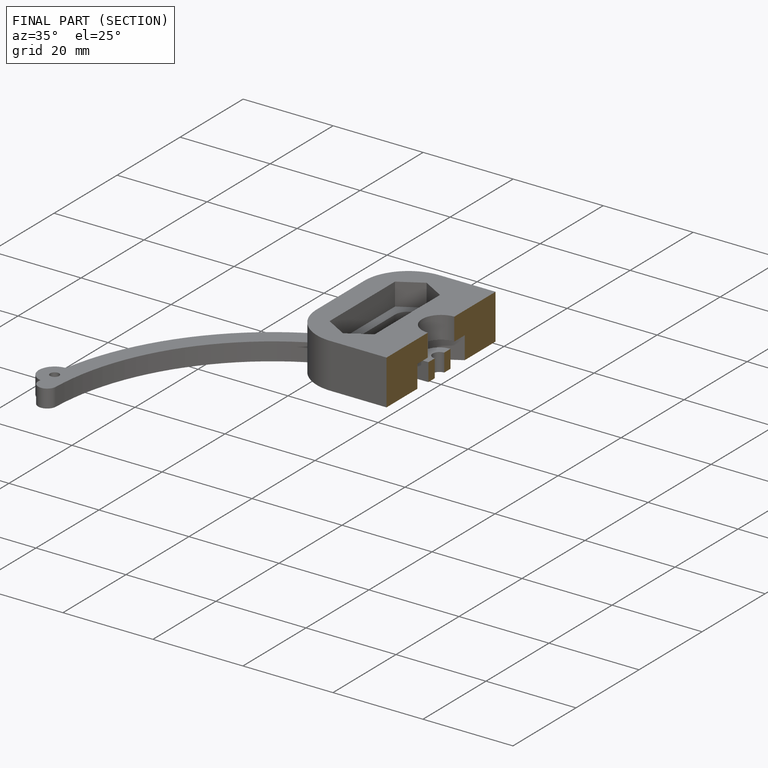
[diagram: finished part — half-section view (interior)]
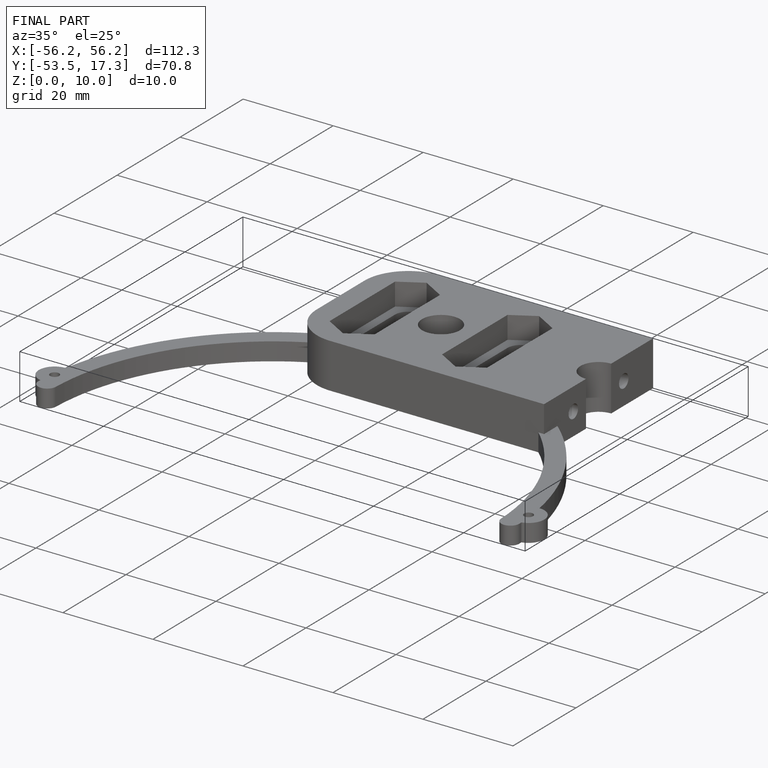
[diagram: finished part — iso view with bounding-box wireframe]
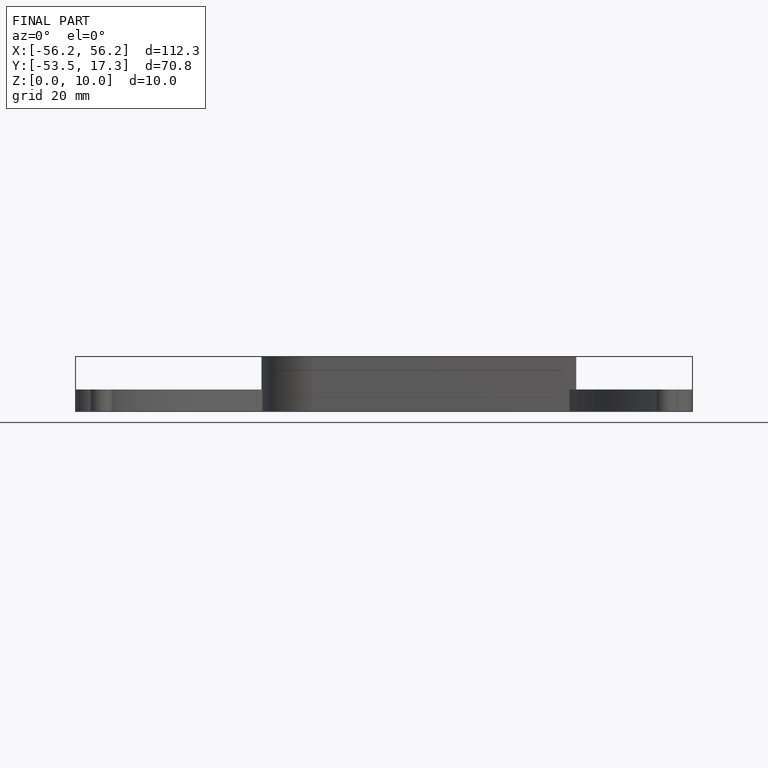
[diagram: finished part — front view with bounding-box wireframe]
